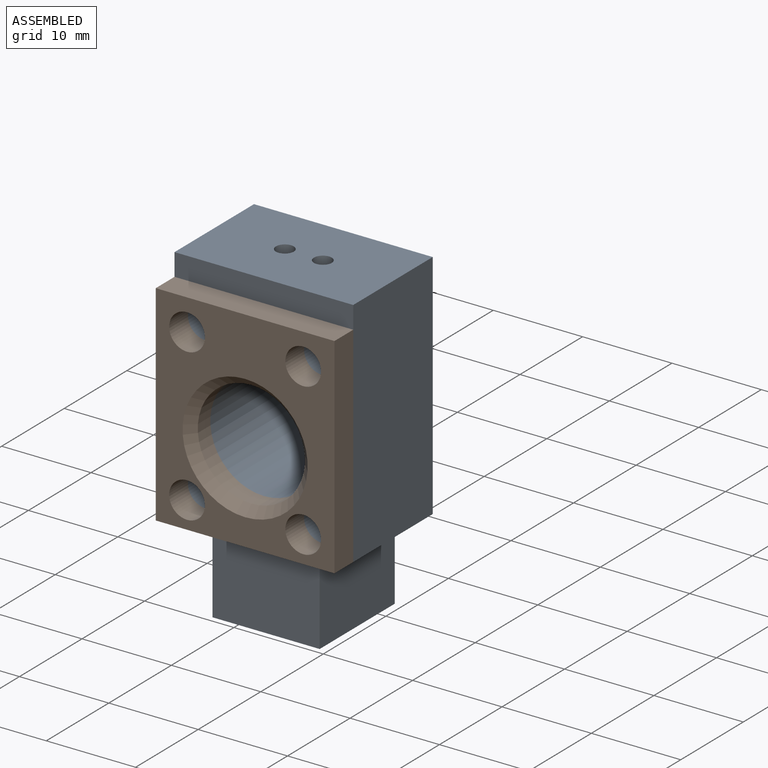
[diagram: assembled view]
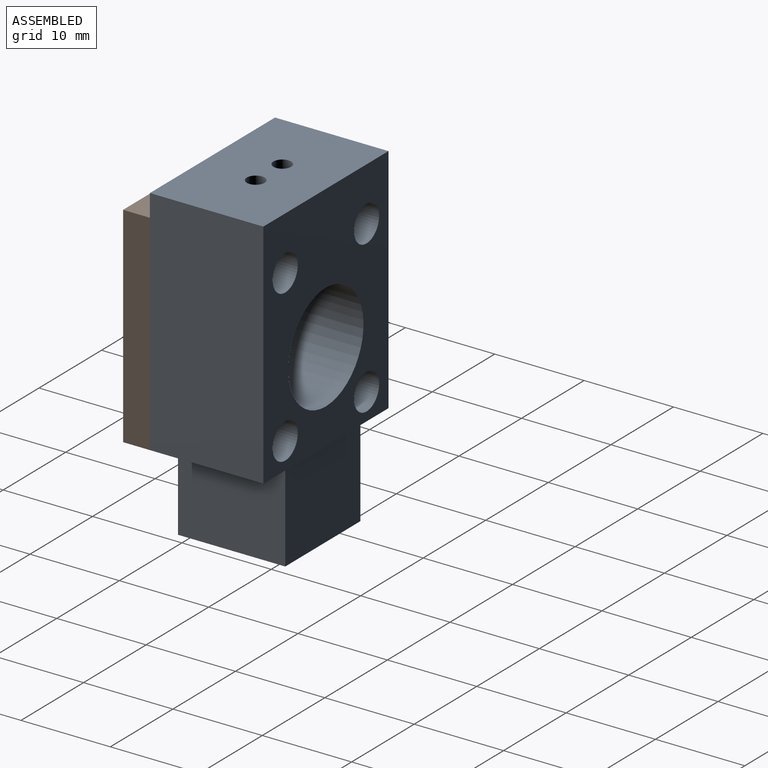
[diagram: assembled view, second angle]
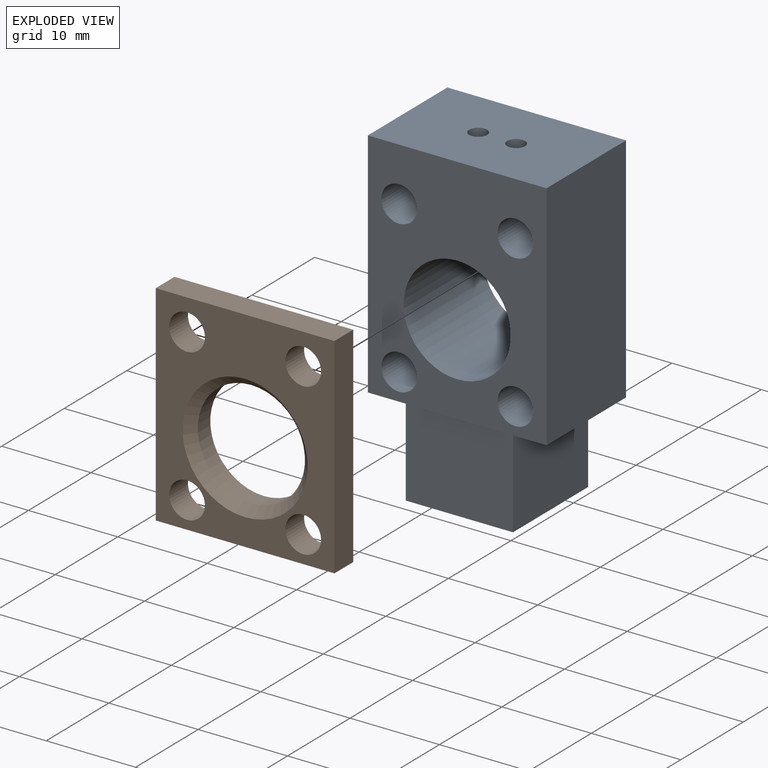
[diagram: exploded view]
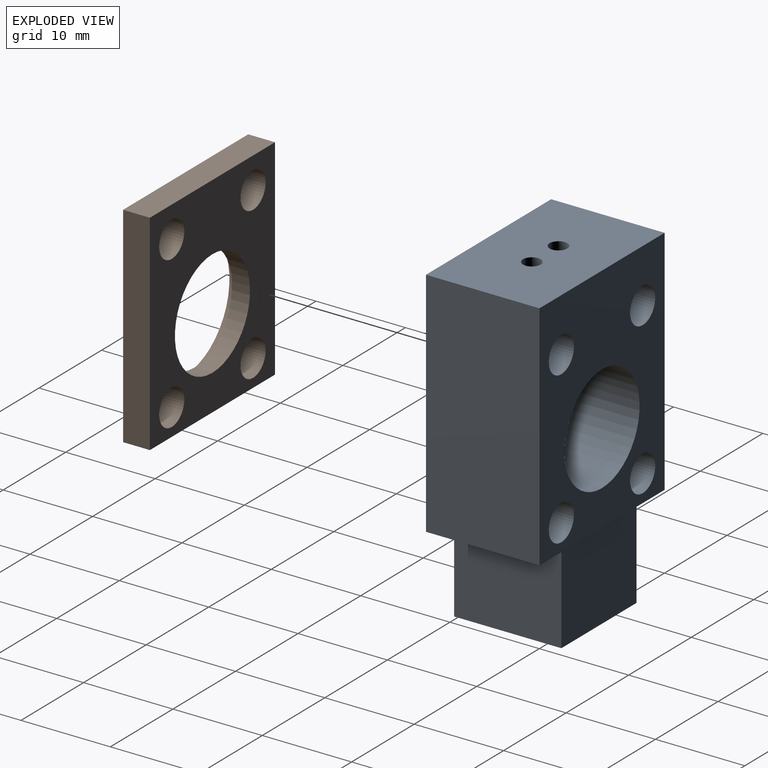
[diagram: exploded view, second angle]
ASSEMBLY  parts=2 mates=2
PART A: 18 faces, bbox 20x12.7x36 mm
  f0: plane 20x12.7mm, normal (0,0,1), area 247.7mm2, adj f1,f4,f5,f6,f16,f17
  f1: plane 26x12.7mm, normal (-1,0,0), area 330.2mm2, adj f0,f2,f5,f6
  f2: plane 20x12.7mm, normal (0,0,-1), area 110mm2, adj f1,f4,f5,f6,f8,f9,f10,f11
  f3: cylinder r=6mm len=12.7mm, axis (0,1,0), area 472mm2, adj f5,f6,f16,f17
  f4: plane 26x12.7mm, normal (1,0,0), area 330.2mm2, adj f0,f2,f5,f6
  f5: plane 26x20mm, normal (0,-1,0), area 356.6mm2, adj f0,f1,f2,f3,f4,f12,f13,f14
  f6: plane 26x20mm, normal (0,1,0), area 356.6mm2, adj f0,f1,f2,f3,f4,f12,f13,f14
  f7: plane 12x12mm, normal (0,0,-1), area 144mm2, adj f8,f9,f10,f11
  f8: plane 12x10mm, normal (0,-1,0), area 120mm2, adj f2,f7,f9,f11
  f9: plane 12x10mm, normal (-1,0,0), area 120mm2, adj f2,f7,f8,f10
  f10: plane 12x10mm, normal (0,1,0), area 120mm2, adj f2,f7,f9,f11
  f11: plane 12x10mm, normal (1,0,0), area 120mm2, adj f2,f7,f8,f10
  f12: cylinder r=2mm len=12.7mm, axis (0,-1,0), area 159.6mm2, adj f5,f6
  f13: cylinder r=2mm len=12.7mm, axis (0,-1,0), area 159.6mm2, adj f5,f6
  f14: cylinder r=2mm len=12.7mm, axis (0,-1,0), area 159.6mm2, adj f5,f6
  f15: cylinder r=2mm len=12.7mm, axis (0,-1,0), area 159.6mm2, adj f5,f6
  f16: cylinder r=1mm len=10.89mm, axis (0,0,1), area 65.7mm2, adj f0,f3
  f17: cylinder r=1mm len=10.86mm, axis (0,0,1), area 65.5mm2, adj f0,f3
PART B: 12 faces, bbox 20x3x23.5 mm
  f0: plane 20x3mm, normal (0,0,1), area 60mm2, adj f1,f4,f5,f6
  f1: plane 23.5x3mm, normal (-1,0,0), area 70.5mm2, adj f0,f2,f5,f6
  f2: plane 20x3mm, normal (0,0,-1), area 60mm2, adj f1,f4,f5,f6
  f3: cylinder r=6mm len=12mm, axis (0,1,0), area 75.4mm2, adj f6,f7
  f4: plane 23.5x3mm, normal (1,0,0), area 70.5mm2, adj f0,f2,f5,f6
  f5: plane 23.5x20mm, normal (0,-1,0), area 265.8mm2, adj f0,f1,f2,f4,f7,f8,f9,f10
  f6: plane 23.5x20mm, normal (0,1,0), area 306.6mm2, adj f0,f1,f2,f3,f4,f8,f9,f10
  f7: cone r=6mm half-angle=45deg, axis (0,-1,0), area 57.8mm2, adj f3,f5
  f8: cylinder r=2mm len=4mm, axis (0,-1,0), area 37.7mm2, adj f5,f6
  f9: cylinder r=2mm len=4mm, axis (0,-1,0), area 37.7mm2, adj f5,f6
  f10: cylinder r=2mm len=4mm, axis (0,-1,0), area 37.7mm2, adj f5,f6
  f11: cylinder r=2mm len=4mm, axis (0,-1,0), area 37.7mm2, adj f5,f6
PLACE A rot(axis=(-0.99,-0.13,-0.04),0deg) t=(-26.07,5.52,-4.65)mm
PLACE B rot(axis=(-0.99,-0.13,-0.04),0deg) t=(-26.07,-0.83,-4.03)mm
MATE slider A.f14 <-> B.f9  axis (0,-1,0) through (-19.57,-0.83,25.35)mm
MATE planar A.f5 <-> B.f6  axis (0,-1,0) through (-26.07,-0.83,19.51)mm
